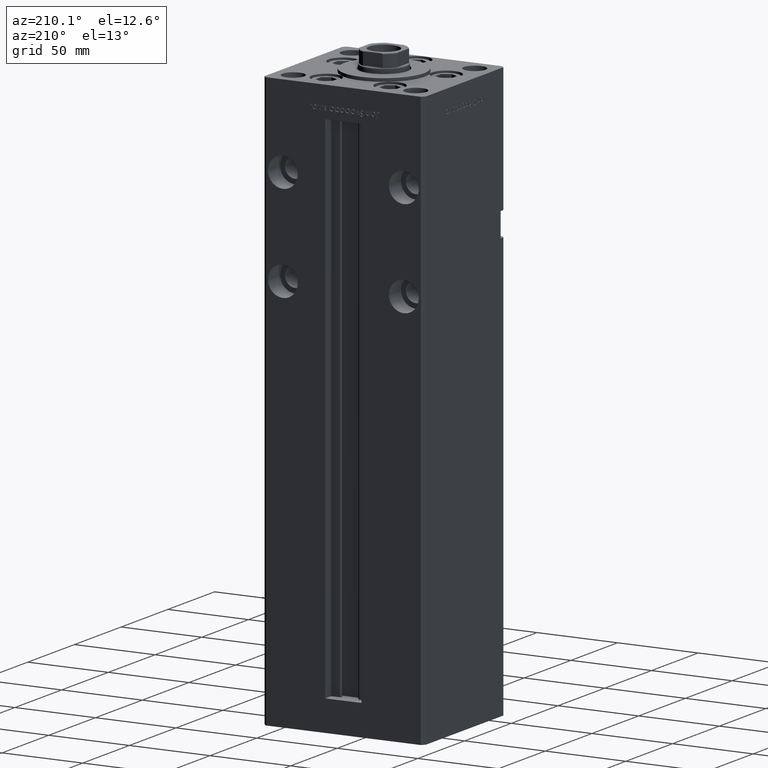
[diagram: clean part render]
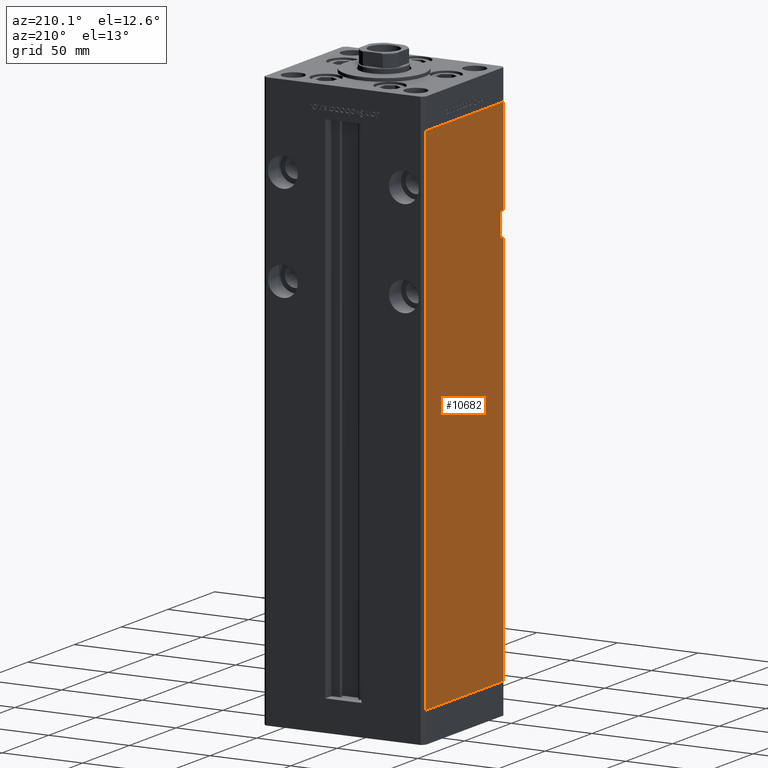
[diagram: same view with one face highlighted and labeled with its STEP entity id]
A machine part, auxiliary view. The second image highlights one B-rep face of the part: STEP entity #10682.
In plain terms, the highlighted planar face has unit normal (1, 0, 0).
Its self-contained STEP definition (entity closure, byte-faithful):
#298 = VECTOR ( 'NONE', #47287, 1000.000000000000000 ) ;
#691 = DIRECTION ( 'NONE',  ( -0.000000000000000000, -0.000000000000000000, -1.000000000000000000 ) ) ;
#1108 = ORIENTED_EDGE ( 'NONE', *, *, #12196, .F. ) ;
#3621 = LINE ( 'NONE', #34901, #298 ) ;
#6970 = DIRECTION ( 'NONE',  ( 3.344045254895050973E-16, -1.000000000000000000, 0.000000000000000000 ) ) ;
#7413 = CARTESIAN_POINT ( 'NONE',  ( -49.99999999999998579, -38.50000000000000000, 244.0000000000000000 ) ) ;
#7675 = CARTESIAN_POINT ( 'NONE',  ( -49.99999999999998579, -38.50000000000000000, 259.0000000000000000 ) ) ;
#7832 = ORIENTED_EDGE ( 'NONE', *, *, #37065, .F. ) ;
#8115 = VECTOR ( 'NONE', #12218, 1000.000000000000000 ) ;
#8759 = DIRECTION ( 'NONE',  ( 3.344045254895050973E-16, -1.000000000000000000, 0.000000000000000000 ) ) ;
#8820 = EDGE_CURVE ( 'NONE', #12740, #23694, #9550, .T. ) ;
#9103 = PLANE ( 'NONE',  #39380 ) ;
#9550 = LINE ( 'NONE', #25958, #51437 ) ;
#10682 = ADVANCED_FACE ( 'NONE', ( #13136 ), #9103, .F. ) ;
#11974 = DIRECTION ( 'NONE',  ( -0.000000000000000000, -1.000000000000000000, -0.000000000000000000 ) ) ;
#12196 = EDGE_CURVE ( 'NONE', #25491, #38198, #15501, .T. ) ;
#12218 = DIRECTION ( 'NONE',  ( -0.000000000000000000, -0.000000000000000000, -1.000000000000000000 ) ) ;
#12740 = VERTEX_POINT ( 'NONE', #13759 ) ;
#13136 = FACE_OUTER_BOUND ( 'NONE', #18902, .T. ) ;
#13759 = CARTESIAN_POINT ( 'NONE',  ( -50.00000000000001421, 41.49999999999999289, 318.5000000000000000 ) ) ;
#14733 = EDGE_CURVE ( 'NONE', #47992, #47945, #15043, .T. ) ;
#15043 = LINE ( 'NONE', #15844, #18625 ) ;
#15174 = CARTESIAN_POINT ( 'NONE',  ( -49.99999999999998579, -38.50000000000000000, 244.0000000000000000 ) ) ;
#15501 = LINE ( 'NONE', #7413, #51431 ) ;
#15844 = CARTESIAN_POINT ( 'NONE',  ( -50.00000000000001421, 41.49999999999999289, 0.000000000000000000 ) ) ;
#16740 = ORIENTED_EDGE ( 'NONE', *, *, #8820, .F. ) ;
#16985 = VECTOR ( 'NONE', #36033, 1000.000000000000000 ) ;
#18337 = EDGE_CURVE ( 'NONE', #36729, #27722, #19791, .T. ) ;
#18625 = VECTOR ( 'NONE', #6970, 1000.000000000000000 ) ;
#18902 = EDGE_LOOP ( 'NONE', ( #52806, #1108, #27221, #38300, #7832, #16740, #22008, #51060 ) ) ;
#19791 = LINE ( 'NONE', #7675, #21307 ) ;
#20432 = CARTESIAN_POINT ( 'NONE',  ( -50.00000000000001421, 41.49999999999999289, 318.5000000000000000 ) ) ;
#21118 = LINE ( 'NONE', #33506, #42716 ) ;
#21307 = VECTOR ( 'NONE', #11974, 1000.000000000000000 ) ;
#22008 = ORIENTED_EDGE ( 'NONE', *, *, #39053, .T. ) ;
#23694 = VERTEX_POINT ( 'NONE', #49158 ) ;
#23786 = CARTESIAN_POINT ( 'NONE',  ( -49.99999999999998579, -41.49999999999999289, 244.0000000000000000 ) ) ;
#24331 = CARTESIAN_POINT ( 'NONE',  ( -50.00000000000001421, 41.49999999999999289, 318.5000000000000000 ) ) ;
#25491 = VERTEX_POINT ( 'NONE', #15174 ) ;
#25958 = CARTESIAN_POINT ( 'NONE',  ( -50.00000000000001421, 41.49999999999999289, 318.5000000000000000 ) ) ;
#27152 = LINE ( 'NONE', #35240, #16985 ) ;
#27221 = ORIENTED_EDGE ( 'NONE', *, *, #53074, .F. ) ;
#27722 = VERTEX_POINT ( 'NONE', #49055 ) ;
#33506 = CARTESIAN_POINT ( 'NONE',  ( -49.99999999999998579, -41.49999999999999289, 318.5000000000000000 ) ) ;
#34901 = CARTESIAN_POINT ( 'NONE',  ( -49.99999999999998579, -41.49999999999999289, 318.5000000000000000 ) ) ;
#35240 = CARTESIAN_POINT ( 'NONE',  ( -49.99999999999998579, -38.50000000000000000, 259.0000000000000000 ) ) ;
#36033 = DIRECTION ( 'NONE',  ( 0.000000000000000000, 0.000000000000000000, -1.000000000000000000 ) ) ;
#36729 = VERTEX_POINT ( 'NONE', #46541 ) ;
#36858 = DIRECTION ( 'NONE',  ( -3.344045254895050480E-16, 1.000000000000000000, 0.000000000000000000 ) ) ;
#37065 = EDGE_CURVE ( 'NONE', #23694, #27722, #3621, .T. ) ;
#38198 = VERTEX_POINT ( 'NONE', #23786 ) ;
#38300 = ORIENTED_EDGE ( 'NONE', *, *, #18337, .T. ) ;
#39053 = EDGE_CURVE ( 'NONE', #12740, #47992, #40753, .T. ) ;
#39380 = AXIS2_PLACEMENT_3D ( 'NONE', #20432, #49225, #36858 ) ;
#40753 = LINE ( 'NONE', #24331, #8115 ) ;
#42716 = VECTOR ( 'NONE', #691, 1000.000000000000000 ) ;
#44292 = DIRECTION ( 'NONE',  ( -0.000000000000000000, -1.000000000000000000, -0.000000000000000000 ) ) ;
#46541 = CARTESIAN_POINT ( 'NONE',  ( -49.99999999999998579, -38.50000000000000000, 259.0000000000000000 ) ) ;
#47287 = DIRECTION ( 'NONE',  ( -0.000000000000000000, -0.000000000000000000, -1.000000000000000000 ) ) ;
#47945 = VERTEX_POINT ( 'NONE', #48848 ) ;
#47992 = VERTEX_POINT ( 'NONE', #52025 ) ;
#48848 = CARTESIAN_POINT ( 'NONE',  ( -49.99999999999998579, -41.49999999999999289, 0.000000000000000000 ) ) ;
#49055 = CARTESIAN_POINT ( 'NONE',  ( -49.99999999999998579, -41.49999999999999289, 259.0000000000000000 ) ) ;
#49158 = CARTESIAN_POINT ( 'NONE',  ( -49.99999999999998579, -41.49999999999999289, 318.5000000000000000 ) ) ;
#49225 = DIRECTION ( 'NONE',  ( 1.000000000000000000, 3.344045254895050480E-16, -0.000000000000000000 ) ) ;
#51060 = ORIENTED_EDGE ( 'NONE', *, *, #14733, .T. ) ;
#51431 = VECTOR ( 'NONE', #44292, 1000.000000000000000 ) ;
#51437 = VECTOR ( 'NONE', #8759, 1000.000000000000000 ) ;
#52025 = CARTESIAN_POINT ( 'NONE',  ( -50.00000000000001421, 41.49999999999999289, 0.000000000000000000 ) ) ;
#52317 = EDGE_CURVE ( 'NONE', #38198, #47945, #21118, .T. ) ;
#52806 = ORIENTED_EDGE ( 'NONE', *, *, #52317, .F. ) ;
#53074 = EDGE_CURVE ( 'NONE', #36729, #25491, #27152, .T. ) ;